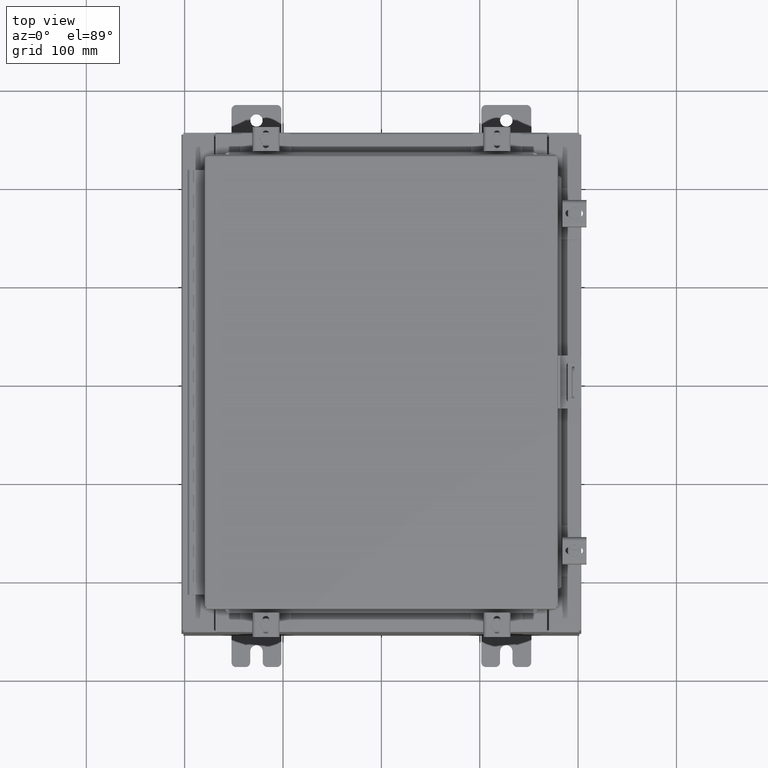
[diagram: clean part render]
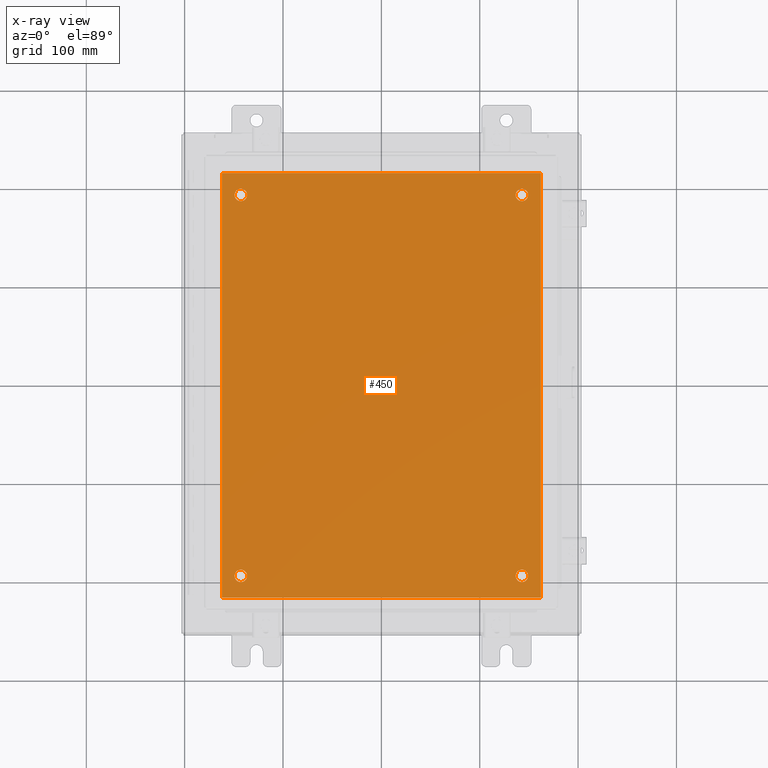
[diagram: x-ray — body ghosted, one internal face saturated and labeled with its STEP entity id]
A machine part, top view, then the same camera in x-ray: the body is ghosted and one INTERNAL B-rep face — a face not visible from any outside direction — is saturated and labeled: STEP entity #450.
In plain terms, the highlighted planar face has unit normal (0, 0, -1).
Its self-contained STEP definition (entity closure, byte-faithful):
#35 = CARTESIAN_POINT ( 'NONE',  ( -5.625000000000000000, 7.625000000000001800, -0.1039999999999999800 ) ) ;
#45 = CIRCLE ( 'NONE', #14201, 0.2499999999999998100 ) ;
#450 = ADVANCED_FACE ( 'NONE', ( #19090, #6962, #24455, #18384, #12310 ), #28193, .T. ) ;
#470 = CARTESIAN_POINT ( 'NONE',  ( -6.499999999999998200, 8.500000000000000000, -0.1039999999999999800 ) ) ;
#955 = VERTEX_POINT ( 'NONE', #4175 ) ;
#1140 = VECTOR ( 'NONE', #11999, 39.37007874015748100 ) ;
#1380 = LINE ( 'NONE', #470, #25639 ) ;
#1884 = AXIS2_PLACEMENT_3D ( 'NONE', #12562, #28538, #14869 ) ;
#2289 = LINE ( 'NONE', #8052, #7604 ) ;
#2311 = DIRECTION ( 'NONE',  ( -1.000000000000000000, 0.0000000000000000000, 0.0000000000000000000 ) ) ;
#2695 = CIRCLE ( 'NONE', #3465, 0.2499999999999987000 ) ;
#2882 = CARTESIAN_POINT ( 'NONE',  ( -5.375000000000000900, 7.625000000000001800, -0.1039999999999999800 ) ) ;
#2976 = CARTESIAN_POINT ( 'NONE',  ( -6.382999999999998200, -8.499999999999998200, -0.1039999999999998100 ) ) ;
#3465 = AXIS2_PLACEMENT_3D ( 'NONE', #25945, #12258, #28242 ) ;
#4033 = ORIENTED_EDGE ( 'NONE', *, *, #20446, .T. ) ;
#4175 = CARTESIAN_POINT ( 'NONE',  ( 5.375000000000001800, 7.625000000000002700, -0.1039999999999999800 ) ) ;
#4179 = AXIS2_PLACEMENT_3D ( 'NONE', #11054, #27040, #13347 ) ;
#4448 = CARTESIAN_POINT ( 'NONE',  ( 5.875000000000003600, -7.625000000000000900, -0.1039999999999999800 ) ) ;
#4630 = VERTEX_POINT ( 'NONE', #2882 ) ;
#4650 = VERTEX_POINT ( 'NONE', #2976 ) ;
#4945 = CARTESIAN_POINT ( 'NONE',  ( -5.625000000000000000, -7.625000000000001800, -0.1039999999999999800 ) ) ;
#6882 = LINE ( 'NONE', #7023, #24374 ) ;
#6962 = FACE_BOUND ( 'NONE', #15392, .T. ) ;
#7023 = CARTESIAN_POINT ( 'NONE',  ( -6.499999999999998200, -8.499999999999998200, -0.1039999999999999800 ) ) ;
#7150 = EDGE_CURVE ( 'NONE', #955, #11478, #24053, .T. ) ;
#7238 = DIRECTION ( 'NONE',  ( -1.000000000000000000, 0.0000000000000000000, 0.0000000000000000000 ) ) ;
#7604 = VECTOR ( 'NONE', #26311, 39.37007874015748100 ) ;
#7918 = ORIENTED_EDGE ( 'NONE', *, *, #10758, .F. ) ;
#8011 = DIRECTION ( 'NONE',  ( -0.0000000000000000000, -0.0000000000000000000, 1.000000000000000000 ) ) ;
#8052 = CARTESIAN_POINT ( 'NONE',  ( 6.383000000000002700, -8.499999999999998200, -0.1039999999999998100 ) ) ;
#8054 = CIRCLE ( 'NONE', #15199, 0.2499999999999987000 ) ;
#8436 = ORIENTED_EDGE ( 'NONE', *, *, #17800, .T. ) ;
#8500 = ORIENTED_EDGE ( 'NONE', *, *, #26146, .T. ) ;
#8602 = LINE ( 'NONE', #21175, #1140 ) ;
#8939 = CARTESIAN_POINT ( 'NONE',  ( 5.625000000000004400, -7.625000000000000900, -0.1039999999999999800 ) ) ;
#9139 = EDGE_LOOP ( 'NONE', ( #10465, #27855 ) ) ;
#9428 = VERTEX_POINT ( 'NONE', #27129 ) ;
#9526 = VERTEX_POINT ( 'NONE', #11542 ) ;
#9598 = DIRECTION ( 'NONE',  ( -1.000000000000000000, 0.0000000000000000000, -0.0000000000000000000 ) ) ;
#9961 = CARTESIAN_POINT ( 'NONE',  ( 6.383000000000000900, 8.500000000000000000, -0.1039999999999999800 ) ) ;
#10052 = AXIS2_PLACEMENT_3D ( 'NONE', #21648, #8011, #23978 ) ;
#10085 = ORIENTED_EDGE ( 'NONE', *, *, #23936, .F. ) ;
#10465 = ORIENTED_EDGE ( 'NONE', *, *, #25535, .T. ) ;
#10758 = EDGE_CURVE ( 'NONE', #13446, #23809, #1380, .T. ) ;
#10871 = ORIENTED_EDGE ( 'NONE', *, *, #26823, .F. ) ;
#11054 = CARTESIAN_POINT ( 'NONE',  ( -5.625000000000000000, -7.625000000000001800, -0.1039999999999999800 ) ) ;
#11206 = DIRECTION ( 'NONE',  ( -1.000000000000000000, 0.0000000000000000000, 0.0000000000000000000 ) ) ;
#11478 = VERTEX_POINT ( 'NONE', #21576 ) ;
#11507 = CARTESIAN_POINT ( 'NONE',  ( -5.625000000000000000, 7.625000000000001800, -0.1039999999999999800 ) ) ;
#11542 = CARTESIAN_POINT ( 'NONE',  ( 5.375000000000006200, -7.625000000000000900, -0.1039999999999999800 ) ) ;
#11888 = VERTEX_POINT ( 'NONE', #22390 ) ;
#11947 = VERTEX_POINT ( 'NONE', #4448 ) ;
#11999 = DIRECTION ( 'NONE',  ( 0.0000000000000000000, -1.000000000000000000, 0.0000000000000000000 ) ) ;
#12258 = DIRECTION ( 'NONE',  ( -0.0000000000000000000, -0.0000000000000000000, 1.000000000000000000 ) ) ;
#12310 = FACE_OUTER_BOUND ( 'NONE', #23508, .T. ) ;
#12562 = CARTESIAN_POINT ( 'NONE',  ( 5.625000000000000000, 7.625000000000002700, -0.1039999999999999800 ) ) ;
#13149 = DIRECTION ( 'NONE',  ( 0.0000000000000000000, 0.0000000000000000000, -1.000000000000000000 ) ) ;
#13347 = DIRECTION ( 'NONE',  ( -1.000000000000000000, 0.0000000000000000000, 0.0000000000000000000 ) ) ;
#13446 = VERTEX_POINT ( 'NONE', #9961 ) ;
#13453 = ORIENTED_EDGE ( 'NONE', *, *, #15389, .T. ) ;
#13807 = DIRECTION ( 'NONE',  ( -1.000000000000000000, 0.0000000000000000000, 0.0000000000000000000 ) ) ;
#13868 = CIRCLE ( 'NONE', #4179, 0.2499999999999998100 ) ;
#14154 = CIRCLE ( 'NONE', #21715, 0.2499999999999998100 ) ;
#14201 = AXIS2_PLACEMENT_3D ( 'NONE', #4945, #20875, #7238 ) ;
#14869 = DIRECTION ( 'NONE',  ( -1.000000000000000000, 0.0000000000000000000, 0.0000000000000000000 ) ) ;
#15159 = VERTEX_POINT ( 'NONE', #17616 ) ;
#15199 = AXIS2_PLACEMENT_3D ( 'NONE', #8939, #24892, #11206 ) ;
#15389 = EDGE_CURVE ( 'NONE', #17587, #9428, #45, .T. ) ;
#15392 = EDGE_LOOP ( 'NONE', ( #8436, #23611 ) ) ;
#15919 = DIRECTION ( 'NONE',  ( -0.0000000000000000000, -0.0000000000000000000, 1.000000000000000000 ) ) ;
#16359 = DIRECTION ( 'NONE',  ( -1.000000000000000000, -0.0000000000000000000, -0.0000000000000000000 ) ) ;
#16461 = CARTESIAN_POINT ( 'NONE',  ( 0.0000000000000000000, 0.0000000000000000000, -0.1039999999999999800 ) ) ;
#17464 = CIRCLE ( 'NONE', #1884, 0.2499999999999987000 ) ;
#17587 = VERTEX_POINT ( 'NONE', #26504 ) ;
#17616 = CARTESIAN_POINT ( 'NONE',  ( 6.383000000000000900, -8.499999999999998200, -0.1039999999999999800 ) ) ;
#17800 = EDGE_CURVE ( 'NONE', #11947, #9526, #8054, .T. ) ;
#17868 = EDGE_CURVE ( 'NONE', #11888, #4630, #18746, .T. ) ;
#18384 = FACE_BOUND ( 'NONE', #23360, .T. ) ;
#18746 = CIRCLE ( 'NONE', #24367, 0.2499999999999998100 ) ;
#19090 = FACE_BOUND ( 'NONE', #24751, .T. ) ;
#20094 = ORIENTED_EDGE ( 'NONE', *, *, #22605, .F. ) ;
#20257 = ORIENTED_EDGE ( 'NONE', *, *, #17868, .T. ) ;
#20446 = EDGE_CURVE ( 'NONE', #4630, #11888, #14154, .T. ) ;
#20875 = DIRECTION ( 'NONE',  ( -0.0000000000000000000, -0.0000000000000000000, 1.000000000000000000 ) ) ;
#21175 = CARTESIAN_POINT ( 'NONE',  ( -6.382999999999998200, 8.500000000000000000, -0.1039999999999998100 ) ) ;
#21576 = CARTESIAN_POINT ( 'NONE',  ( 5.874999999999999100, 7.625000000000002700, -0.1039999999999999800 ) ) ;
#21648 = CARTESIAN_POINT ( 'NONE',  ( 5.625000000000000000, 7.625000000000002700, -0.1039999999999999800 ) ) ;
#21715 = AXIS2_PLACEMENT_3D ( 'NONE', #35, #15919, #2311 ) ;
#21888 = EDGE_CURVE ( 'NONE', #9526, #11947, #2695, .T. ) ;
#22390 = CARTESIAN_POINT ( 'NONE',  ( -5.875000000000000000, 7.625000000000001800, -0.1039999999999999800 ) ) ;
#22605 = EDGE_CURVE ( 'NONE', #15159, #13446, #2289, .T. ) ;
#22995 = DIRECTION ( 'NONE',  ( 1.000000000000000000, 0.0000000000000000000, 0.0000000000000000000 ) ) ;
#23360 = EDGE_LOOP ( 'NONE', ( #4033, #20257 ) ) ;
#23508 = EDGE_LOOP ( 'NONE', ( #10871, #10085, #7918, #20094 ) ) ;
#23611 = ORIENTED_EDGE ( 'NONE', *, *, #21888, .T. ) ;
#23809 = VERTEX_POINT ( 'NONE', #27507 ) ;
#23936 = EDGE_CURVE ( 'NONE', #23809, #4650, #8602, .T. ) ;
#23978 = DIRECTION ( 'NONE',  ( -1.000000000000000000, 0.0000000000000000000, 0.0000000000000000000 ) ) ;
#24053 = CIRCLE ( 'NONE', #10052, 0.2499999999999987000 ) ;
#24367 = AXIS2_PLACEMENT_3D ( 'NONE', #11507, #27497, #13807 ) ;
#24374 = VECTOR ( 'NONE', #22995, 39.37007874015748100 ) ;
#24455 = FACE_BOUND ( 'NONE', #9139, .T. ) ;
#24751 = EDGE_LOOP ( 'NONE', ( #8500, #13453 ) ) ;
#24892 = DIRECTION ( 'NONE',  ( -0.0000000000000000000, -0.0000000000000000000, 1.000000000000000000 ) ) ;
#25535 = EDGE_CURVE ( 'NONE', #11478, #955, #17464, .T. ) ;
#25639 = VECTOR ( 'NONE', #16359, 39.37007874015748100 ) ;
#25945 = CARTESIAN_POINT ( 'NONE',  ( 5.625000000000004400, -7.625000000000000900, -0.1039999999999999800 ) ) ;
#26146 = EDGE_CURVE ( 'NONE', #9428, #17587, #13868, .T. ) ;
#26311 = DIRECTION ( 'NONE',  ( 0.0000000000000000000, 1.000000000000000000, 0.0000000000000000000 ) ) ;
#26504 = CARTESIAN_POINT ( 'NONE',  ( -5.875000000000000000, -7.625000000000001800, -0.1039999999999999800 ) ) ;
#26823 = EDGE_CURVE ( 'NONE', #4650, #15159, #6882, .T. ) ;
#26912 = AXIS2_PLACEMENT_3D ( 'NONE', #16461, #13149, #9598 ) ;
#27040 = DIRECTION ( 'NONE',  ( -0.0000000000000000000, -0.0000000000000000000, 1.000000000000000000 ) ) ;
#27129 = CARTESIAN_POINT ( 'NONE',  ( -5.375000000000000900, -7.625000000000001800, -0.1039999999999999800 ) ) ;
#27497 = DIRECTION ( 'NONE',  ( -0.0000000000000000000, -0.0000000000000000000, 1.000000000000000000 ) ) ;
#27507 = CARTESIAN_POINT ( 'NONE',  ( -6.382999999999998200, 8.500000000000000000, -0.1039999999999998100 ) ) ;
#27855 = ORIENTED_EDGE ( 'NONE', *, *, #7150, .T. ) ;
#28193 = PLANE ( 'NONE',  #26912 ) ;
#28242 = DIRECTION ( 'NONE',  ( -1.000000000000000000, 0.0000000000000000000, 0.0000000000000000000 ) ) ;
#28538 = DIRECTION ( 'NONE',  ( -0.0000000000000000000, -0.0000000000000000000, 1.000000000000000000 ) ) ;